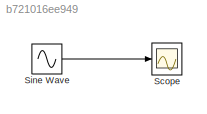
MODEL slx_b721016ee949
KIND model
BLOCK [Scope] Scope
  Floating = off
  NumInputPorts = 1
  Ports = [1]
  ShowLegends = off
BLOCK [Sin] Sine Wave
  Frequency = 10000
  Ports = [0, 1]
  SampleTime = 1/48000
  Samples = 1
LINE Sine Wave:1 -> Scope:1
